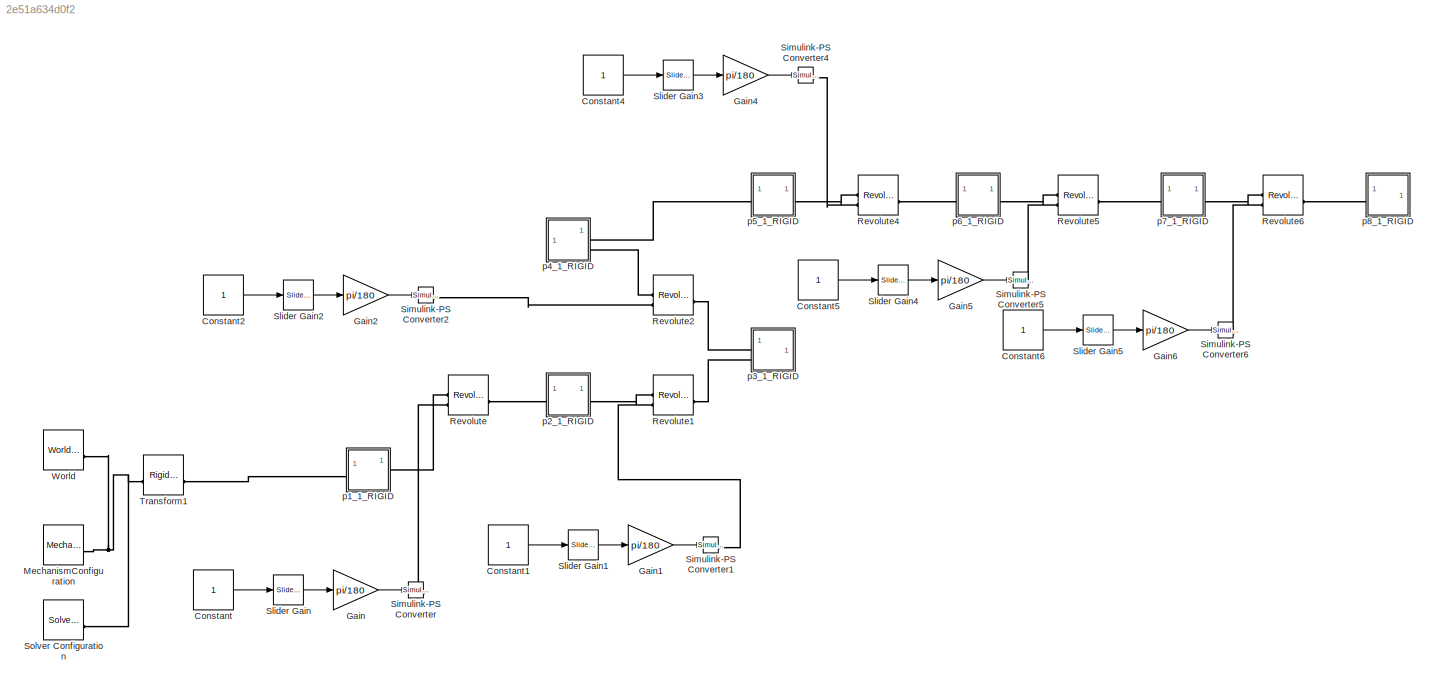
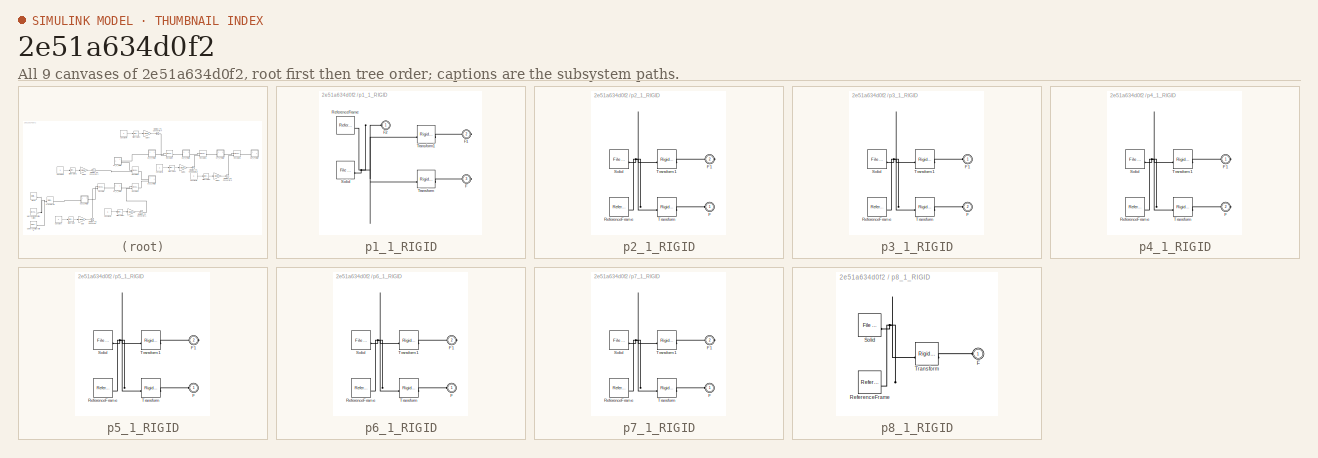
[diagram: thumbnail index - all 9 canvases of the model, root first then tree order]
MODEL slx_2e51a634d0f2
KIND model
CONFIG AbsTol = auto
CONFIG EnableMultiTasking = off
CONFIG FixedStep = auto
CONFIG MaxStep = auto
CONFIG MinStep = auto
CONFIG RelTol = 1e-3
CONFIG SampleTimeConstraint = Unconstrained
CONFIG SolverName = VariableStepAuto
CONFIG StartTime = 0.0
CONFIG StopTime = inf
WORKSPACE source: external: MATLAB File  (data not in archive)
BLOCK [Constant] Constant
BLOCK [Constant] Constant1
BLOCK [Constant] Constant2
BLOCK [Constant] Constant4
BLOCK [Constant] Constant5
BLOCK [Constant] Constant6
BLOCK [Gain] Gain
  Gain = pi/180
BLOCK [Gain] Gain1
  Gain = pi/180
BLOCK [Gain] Gain2
  Gain = pi/180
BLOCK [Gain] Gain4
  Gain = pi/180
BLOCK [Gain] Gain5
  Gain = pi/180
BLOCK [Gain] Gain6
  Gain = pi/180
BLOCK [Reference] MechanismConfiguration  REF=sm_lib/Utilities/Mechanism
Configuration
  SourceBlock = sm_lib/Utilities/Mechanism\nConfiguration
  SourceType = Mechanism\nConfiguration
BLOCK [Reference] Revolute  REF=sm_lib/Joints/Revolute Joint
  SourceBlock = sm_lib/Joints/Revolute Joint
  SourceType = Revolute Joint
BLOCK [Reference] Revolute1  REF=sm_lib/Joints/Revolute Joint
  SourceBlock = sm_lib/Joints/Revolute Joint
  SourceType = Revolute Joint
BLOCK [Reference] Revolute2  REF=sm_lib/Joints/Revolute Joint
  SourceBlock = sm_lib/Joints/Revolute Joint
  SourceType = Revolute Joint
BLOCK [Reference] Revolute4  REF=sm_lib/Joints/Revolute Joint
  SourceBlock = sm_lib/Joints/Revolute Joint
  SourceType = Revolute Joint
BLOCK [Reference] Revolute5  REF=sm_lib/Joints/Revolute Joint
  SourceBlock = sm_lib/Joints/Revolute Joint
  SourceType = Revolute Joint
BLOCK [Reference] Revolute6  REF=sm_lib/Joints/Revolute Joint
  SourceBlock = sm_lib/Joints/Revolute Joint
  SourceType = Revolute Joint
BLOCK [Reference] Simulink-PS Converter  REF=nesl_utility/Simulink-PS
Converter
  SourceBlock = nesl_utility/Simulink-PS\nConverter
  SourceType = Simulink-PS\nConverter
BLOCK [Reference] Simulink-PS Converter1  REF=nesl_utility/Simulink-PS
Converter
  SourceBlock = nesl_utility/Simulink-PS\nConverter
  SourceType = Simulink-PS\nConverter
BLOCK [Reference] Simulink-PS Converter2  REF=nesl_utility/Simulink-PS
Converter
  SourceBlock = nesl_utility/Simulink-PS\nConverter
  SourceType = Simulink-PS\nConverter
BLOCK [Reference] Simulink-PS Converter4  REF=nesl_utility/Simulink-PS
Converter
  SourceBlock = nesl_utility/Simulink-PS\nConverter
  SourceType = Simulink-PS\nConverter
BLOCK [Reference] Simulink-PS Converter5  REF=nesl_utility/Simulink-PS
Converter
  SourceBlock = nesl_utility/Simulink-PS\nConverter
  SourceType = Simulink-PS\nConverter
BLOCK [Reference] Simulink-PS Converter6  REF=nesl_utility/Simulink-PS
Converter
  SourceBlock = nesl_utility/Simulink-PS\nConverter
  SourceType = Simulink-PS\nConverter
BLOCK [Reference] Slider Gain  REF=simulink/Math
Operations/Slider
Gain
  SourceBlock = simulink/Math\nOperations/Slider\nGain
  SourceType = Slider Gain
BLOCK [Reference] Slider Gain1  REF=simulink/Math
Operations/Slider
Gain
  SourceBlock = simulink/Math\nOperations/Slider\nGain
  SourceType = Slider Gain
BLOCK [Reference] Slider Gain2  REF=simulink/Math
Operations/Slider
Gain
  SourceBlock = simulink/Math\nOperations/Slider\nGain
  SourceType = Slider Gain
BLOCK [Reference] Slider Gain3  REF=simulink/Math
Operations/Slider
Gain
  SourceBlock = simulink/Math\nOperations/Slider\nGain
  SourceType = Slider Gain
BLOCK [Reference] Slider Gain4  REF=simulink/Math
Operations/Slider
Gain
  SourceBlock = simulink/Math\nOperations/Slider\nGain
  SourceType = Slider Gain
BLOCK [Reference] Slider Gain5  REF=simulink/Math
Operations/Slider
Gain
  SourceBlock = simulink/Math\nOperations/Slider\nGain
  SourceType = Slider Gain
BLOCK [Reference] Solver Configuration  REF=nesl_utility/Solver
Configuration
  SourceBlock = nesl_utility/Solver\nConfiguration
  SourceType = Solver\nConfiguration
BLOCK [Reference] Transform1  REF=sm_lib/Frames and
Transforms/Rigid
Transform
  SourceBlock = sm_lib/Frames and\nTransforms/Rigid\nTransform
  SourceType = Rigid\nTransform
BLOCK [Reference] World  REF=sm_lib/Frames and
Transforms/World Frame
  SourceBlock = sm_lib/Frames and\nTransforms/World Frame
  SourceType = World Frame
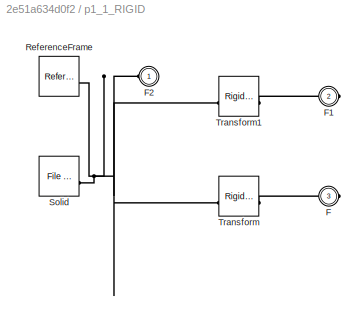
BLOCK [SubSystem] p1_1_RIGID
BLOCK [PMIOPort] p1_1_RIGID/F
  Port = 3
  Side = Right
BLOCK [PMIOPort] p1_1_RIGID/F1
  Port = 2
  Side = Right
BLOCK [PMIOPort] p1_1_RIGID/F2
  Side = Left
BLOCK [Reference] p1_1_RIGID/ReferenceFrame  REF=sm_lib/Frames and
Transforms/Reference
Frame
  SourceBlock = sm_lib/Frames and\nTransforms/Reference\nFrame
  SourceType = Reference\nFrame
BLOCK [Reference] p1_1_RIGID/Solid  REF=sm_lib/Body Elements/File Solid
  SourceBlock = sm_lib/Body Elements/File Solid
  SourceType = File Solid
BLOCK [Reference] p1_1_RIGID/Transform  REF=sm_lib/Frames and
Transforms/Rigid
Transform
  SourceBlock = sm_lib/Frames and\nTransforms/Rigid\nTransform
  SourceType = Rigid\nTransform
BLOCK [Reference] p1_1_RIGID/Transform1  REF=sm_lib/Frames and
Transforms/Rigid
Transform
  SourceBlock = sm_lib/Frames and\nTransforms/Rigid\nTransform
  SourceType = Rigid\nTransform
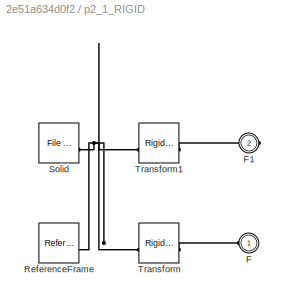
BLOCK [SubSystem] p2_1_RIGID
BLOCK [PMIOPort] p2_1_RIGID/F
  Side = Left
BLOCK [PMIOPort] p2_1_RIGID/F1
  Port = 2
  Side = Right
BLOCK [Reference] p2_1_RIGID/ReferenceFrame  REF=sm_lib/Frames and
Transforms/Reference
Frame
  SourceBlock = sm_lib/Frames and\nTransforms/Reference\nFrame
  SourceType = Reference\nFrame
BLOCK [Reference] p2_1_RIGID/Solid  REF=sm_lib/Body Elements/File Solid
  SourceBlock = sm_lib/Body Elements/File Solid
  SourceType = File Solid
BLOCK [Reference] p2_1_RIGID/Transform  REF=sm_lib/Frames and
Transforms/Rigid
Transform
  SourceBlock = sm_lib/Frames and\nTransforms/Rigid\nTransform
  SourceType = Rigid\nTransform
BLOCK [Reference] p2_1_RIGID/Transform1  REF=sm_lib/Frames and
Transforms/Rigid
Transform
  SourceBlock = sm_lib/Frames and\nTransforms/Rigid\nTransform
  SourceType = Rigid\nTransform
BLOCK [SubSystem] p3_1_RIGID
BLOCK [PMIOPort] p3_1_RIGID/F
  Port = 2
  Side = Left
BLOCK [PMIOPort] p3_1_RIGID/F1
  Side = Left
BLOCK [Reference] p3_1_RIGID/ReferenceFrame  REF=sm_lib/Frames and
Transforms/Reference
Frame
  SourceBlock = sm_lib/Frames and\nTransforms/Reference\nFrame
  SourceType = Reference\nFrame
BLOCK [Reference] p3_1_RIGID/Solid  REF=sm_lib/Body Elements/File Solid
  SourceBlock = sm_lib/Body Elements/File Solid
  SourceType = File Solid
BLOCK [Reference] p3_1_RIGID/Transform  REF=sm_lib/Frames and
Transforms/Rigid
Transform
  SourceBlock = sm_lib/Frames and\nTransforms/Rigid\nTransform
  SourceType = Rigid\nTransform
BLOCK [Reference] p3_1_RIGID/Transform1  REF=sm_lib/Frames and
Transforms/Rigid
Transform
  SourceBlock = sm_lib/Frames and\nTransforms/Rigid\nTransform
  SourceType = Rigid\nTransform
BLOCK [SubSystem] p4_1_RIGID
BLOCK [PMIOPort] p4_1_RIGID/F
  Port = 2
  Side = Right
BLOCK [PMIOPort] p4_1_RIGID/F1
  Side = Right
BLOCK [Reference] p4_1_RIGID/ReferenceFrame  REF=sm_lib/Frames and
Transforms/Reference
Frame
  SourceBlock = sm_lib/Frames and\nTransforms/Reference\nFrame
  SourceType = Reference\nFrame
BLOCK [Reference] p4_1_RIGID/Solid  REF=sm_lib/Body Elements/File Solid
  SourceBlock = sm_lib/Body Elements/File Solid
  SourceType = File Solid
BLOCK [Reference] p4_1_RIGID/Transform  REF=sm_lib/Frames and
Transforms/Rigid
Transform
  SourceBlock = sm_lib/Frames and\nTransforms/Rigid\nTransform
  SourceType = Rigid\nTransform
BLOCK [Reference] p4_1_RIGID/Transform1  REF=sm_lib/Frames and
Transforms/Rigid
Transform
  SourceBlock = sm_lib/Frames and\nTransforms/Rigid\nTransform
  SourceType = Rigid\nTransform
BLOCK [SubSystem] p5_1_RIGID
BLOCK [PMIOPort] p5_1_RIGID/F
  Side = Left
BLOCK [PMIOPort] p5_1_RIGID/F1
  Port = 2
  Side = Right
BLOCK [Reference] p5_1_RIGID/ReferenceFrame  REF=sm_lib/Frames and
Transforms/Reference
Frame
  SourceBlock = sm_lib/Frames and\nTransforms/Reference\nFrame
  SourceType = Reference\nFrame
BLOCK [Reference] p5_1_RIGID/Solid  REF=sm_lib/Body Elements/File Solid
  SourceBlock = sm_lib/Body Elements/File Solid
  SourceType = File Solid
BLOCK [Reference] p5_1_RIGID/Transform  REF=sm_lib/Frames and
Transforms/Rigid
Transform
  SourceBlock = sm_lib/Frames and\nTransforms/Rigid\nTransform
  SourceType = Rigid\nTransform
BLOCK [Reference] p5_1_RIGID/Transform1  REF=sm_lib/Frames and
Transforms/Rigid
Transform
  SourceBlock = sm_lib/Frames and\nTransforms/Rigid\nTransform
  SourceType = Rigid\nTransform
BLOCK [SubSystem] p6_1_RIGID
BLOCK [PMIOPort] p6_1_RIGID/F
  Side = Left
BLOCK [PMIOPort] p6_1_RIGID/F1
  Port = 2
  Side = Right
BLOCK [Reference] p6_1_RIGID/ReferenceFrame  REF=sm_lib/Frames and
Transforms/Reference
Frame
  SourceBlock = sm_lib/Frames and\nTransforms/Reference\nFrame
  SourceType = Reference\nFrame
BLOCK [Reference] p6_1_RIGID/Solid  REF=sm_lib/Body Elements/File Solid
  SourceBlock = sm_lib/Body Elements/File Solid
  SourceType = File Solid
BLOCK [Reference] p6_1_RIGID/Transform  REF=sm_lib/Frames and
Transforms/Rigid
Transform
  SourceBlock = sm_lib/Frames and\nTransforms/Rigid\nTransform
  SourceType = Rigid\nTransform
BLOCK [Reference] p6_1_RIGID/Transform1  REF=sm_lib/Frames and
Transforms/Rigid
Transform
  SourceBlock = sm_lib/Frames and\nTransforms/Rigid\nTransform
  SourceType = Rigid\nTransform
BLOCK [SubSystem] p7_1_RIGID
BLOCK [PMIOPort] p7_1_RIGID/F
  Side = Left
BLOCK [PMIOPort] p7_1_RIGID/F1
  Port = 2
  Side = Right
BLOCK [Reference] p7_1_RIGID/ReferenceFrame  REF=sm_lib/Frames and
Transforms/Reference
Frame
  SourceBlock = sm_lib/Frames and\nTransforms/Reference\nFrame
  SourceType = Reference\nFrame
BLOCK [Reference] p7_1_RIGID/Solid  REF=sm_lib/Body Elements/File Solid
  SourceBlock = sm_lib/Body Elements/File Solid
  SourceType = File Solid
BLOCK [Reference] p7_1_RIGID/Transform  REF=sm_lib/Frames and
Transforms/Rigid
Transform
  SourceBlock = sm_lib/Frames and\nTransforms/Rigid\nTransform
  SourceType = Rigid\nTransform
BLOCK [Reference] p7_1_RIGID/Transform1  REF=sm_lib/Frames and
Transforms/Rigid
Transform
  SourceBlock = sm_lib/Frames and\nTransforms/Rigid\nTransform
  SourceType = Rigid\nTransform
BLOCK [SubSystem] p8_1_RIGID
BLOCK [PMIOPort] p8_1_RIGID/F
  Side = Left
BLOCK [Reference] p8_1_RIGID/ReferenceFrame  REF=sm_lib/Frames and
Transforms/Reference
Frame
  SourceBlock = sm_lib/Frames and\nTransforms/Reference\nFrame
  SourceType = Reference\nFrame
BLOCK [Reference] p8_1_RIGID/Solid  REF=sm_lib/Body Elements/File Solid
  SourceBlock = sm_lib/Body Elements/File Solid
  SourceType = File Solid
BLOCK [Reference] p8_1_RIGID/Transform  REF=sm_lib/Frames and
Transforms/Rigid
Transform
  SourceBlock = sm_lib/Frames and\nTransforms/Rigid\nTransform
  SourceType = Rigid\nTransform
LINE Constant1:1 -> Slider Gain1:1
LINE Constant2:1 -> Slider Gain2:1
LINE Constant4:1 -> Slider Gain3:1
LINE Constant5:1 -> Slider Gain4:1
LINE Constant6:1 -> Slider Gain5:1
LINE Constant:1 -> Slider Gain:1
LINE Gain1:1 -> Simulink-PS Converter1:1
LINE Gain2:1 -> Simulink-PS Converter2:1
LINE Gain4:1 -> Simulink-PS Converter4:1
LINE Gain5:1 -> Simulink-PS Converter5:1
LINE Gain6:1 -> Simulink-PS Converter6:1
LINE Gain:1 -> Simulink-PS Converter:1
LINE Slider Gain1:1 -> Gain1:1
LINE Slider Gain2:1 -> Gain2:1
LINE Slider Gain3:1 -> Gain4:1
LINE Slider Gain4:1 -> Gain5:1
LINE Slider Gain5:1 -> Gain6:1
LINE Slider Gain:1 -> Gain:1
PNET net1: MechanismConfiguration:RConn1 -- Solver Configuration:RConn1 -- Transform1:LConn1 -- World:RConn1
PLINE Revolute1:LConn1 -- p2_1_RIGID:RConn1
PLINE Revolute1:LConn2 -- Simulink-PS Converter1:RConn1
PLINE Revolute1:RConn1 -- p3_1_RIGID:LConn2
PLINE Revolute2:LConn1 -- p4_1_RIGID:RConn2
PLINE Revolute2:LConn2 -- Simulink-PS Converter2:RConn1
PLINE Revolute2:RConn1 -- p3_1_RIGID:LConn1
PLINE Revolute4:LConn1 -- p5_1_RIGID:RConn1
PLINE Revolute4:LConn2 -- Simulink-PS Converter4:RConn1
PLINE Revolute4:RConn1 -- p6_1_RIGID:LConn1
PLINE Revolute5:LConn1 -- p6_1_RIGID:RConn1
PLINE Revolute5:LConn2 -- Simulink-PS Converter5:RConn1
PLINE Revolute5:RConn1 -- p7_1_RIGID:LConn1
PLINE Revolute6:LConn1 -- p7_1_RIGID:RConn1
PLINE Revolute6:LConn2 -- Simulink-PS Converter6:RConn1
PLINE Revolute6:RConn1 -- p8_1_RIGID:LConn1
PLINE Revolute:LConn1 -- p1_1_RIGID:RConn1
PLINE Revolute:LConn2 -- Simulink-PS Converter:RConn1
PLINE Revolute:RConn1 -- p2_1_RIGID:LConn1
PLINE Transform1:RConn1 -- p1_1_RIGID:LConn1
PLINE p1_1_RIGID/F1:RConn1 -- p1_1_RIGID/Transform1:RConn1
PNET net2: p1_1_RIGID/F2:RConn1 -- p1_1_RIGID/ReferenceFrame:RConn1 -- p1_1_RIGID/Solid:RConn1 -- p1_1_RIGID/Transform1:LConn1 -- p1_1_RIGID/Transform:LConn1
PLINE p1_1_RIGID/F:RConn1 -- p1_1_RIGID/Transform:RConn1
PLINE p2_1_RIGID/F1:RConn1 -- p2_1_RIGID/Transform1:RConn1
PLINE p2_1_RIGID/F:RConn1 -- p2_1_RIGID/Transform:RConn1
PNET net3: p2_1_RIGID/ReferenceFrame:RConn1 -- p2_1_RIGID/Solid:RConn1 -- p2_1_RIGID/Transform1:LConn1 -- p2_1_RIGID/Transform:LConn1
PLINE p3_1_RIGID/F1:RConn1 -- p3_1_RIGID/Transform1:RConn1
PLINE p3_1_RIGID/F:RConn1 -- p3_1_RIGID/Transform:RConn1
PNET net4: p3_1_RIGID/ReferenceFrame:RConn1 -- p3_1_RIGID/Solid:RConn1 -- p3_1_RIGID/Transform1:LConn1 -- p3_1_RIGID/Transform:LConn1
PLINE p4_1_RIGID/F1:RConn1 -- p4_1_RIGID/Transform1:RConn1
PLINE p4_1_RIGID/F:RConn1 -- p4_1_RIGID/Transform:RConn1
PNET net5: p4_1_RIGID/ReferenceFrame:RConn1 -- p4_1_RIGID/Solid:RConn1 -- p4_1_RIGID/Transform1:LConn1 -- p4_1_RIGID/Transform:LConn1
PLINE p4_1_RIGID:RConn1 -- p5_1_RIGID:LConn1
PLINE p5_1_RIGID/F1:RConn1 -- p5_1_RIGID/Transform1:RConn1
PLINE p5_1_RIGID/F:RConn1 -- p5_1_RIGID/Transform:RConn1
PNET net6: p5_1_RIGID/ReferenceFrame:RConn1 -- p5_1_RIGID/Solid:RConn1 -- p5_1_RIGID/Transform1:LConn1 -- p5_1_RIGID/Transform:LConn1
PLINE p6_1_RIGID/F1:RConn1 -- p6_1_RIGID/Transform1:RConn1
PLINE p6_1_RIGID/F:RConn1 -- p6_1_RIGID/Transform:RConn1
PNET net7: p6_1_RIGID/ReferenceFrame:RConn1 -- p6_1_RIGID/Solid:RConn1 -- p6_1_RIGID/Transform1:LConn1 -- p6_1_RIGID/Transform:LConn1
PLINE p7_1_RIGID/F1:RConn1 -- p7_1_RIGID/Transform1:RConn1
PLINE p7_1_RIGID/F:RConn1 -- p7_1_RIGID/Transform:RConn1
PNET net8: p7_1_RIGID/ReferenceFrame:RConn1 -- p7_1_RIGID/Solid:RConn1 -- p7_1_RIGID/Transform1:LConn1 -- p7_1_RIGID/Transform:LConn1
PLINE p8_1_RIGID/F:RConn1 -- p8_1_RIGID/Transform:RConn1
PNET net9: p8_1_RIGID/ReferenceFrame:RConn1 -- p8_1_RIGID/Solid:RConn1 -- p8_1_RIGID/Transform:LConn1
note: PNET lines group multi-terminal physical nets as a canonical sorted terminal list (undirected conserving connections); 2-terminal nets keep the pairwise PLINE form
